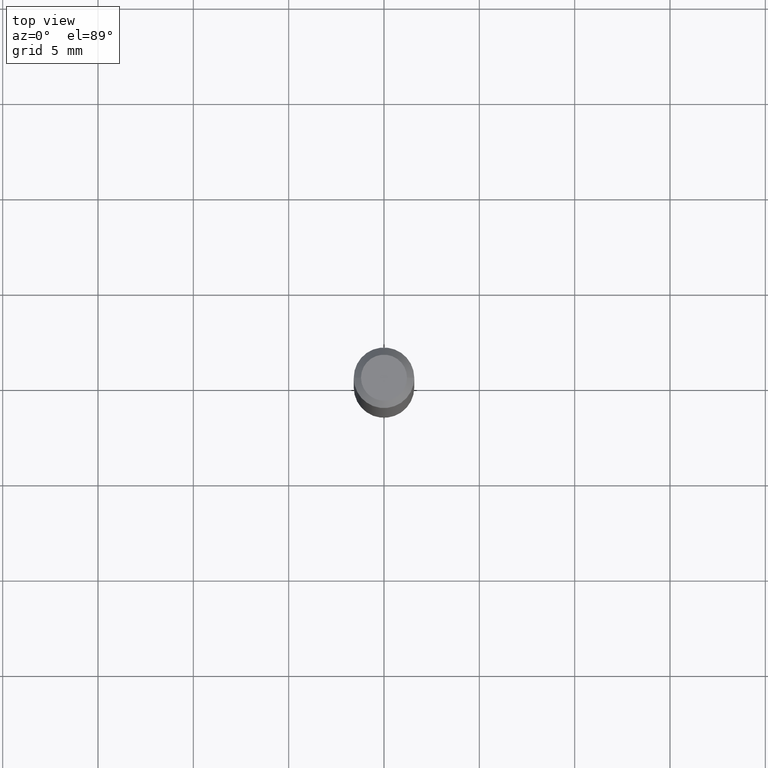
[diagram: clean part render]
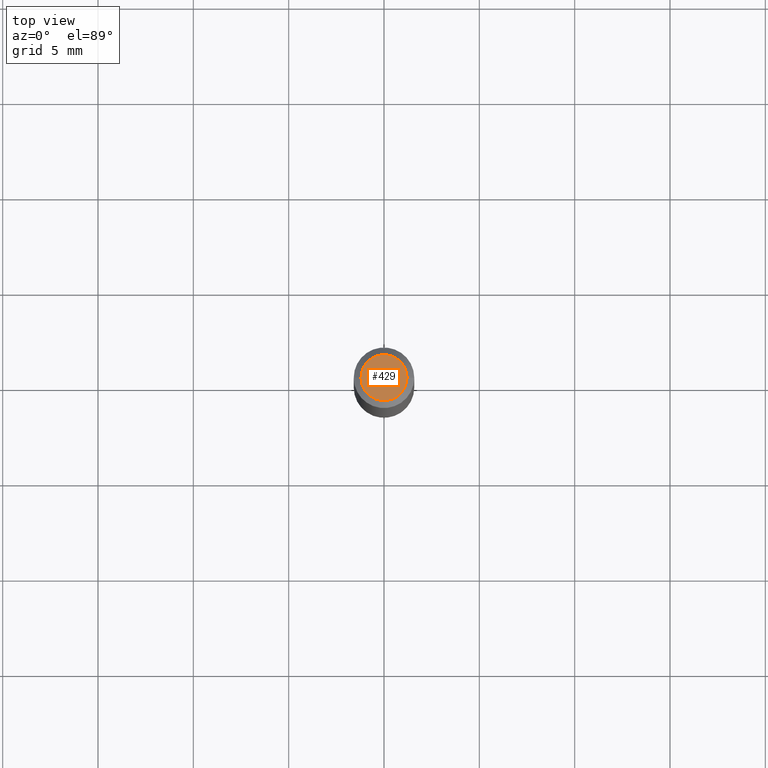
[diagram: same view with one face highlighted and labeled with its STEP entity id]
A machine part, top view. The second image highlights one B-rep face of the part: STEP entity #429.
In plain terms, the highlighted planar face has unit normal (0, -0, -1).
Its self-contained STEP definition (entity closure, byte-faithful):
#41 = CARTESIAN_POINT ( 'NONE',  ( -0.04750000000000000749, 3.578768372314221353E-16, 2.731847993664239060E-16 ) ) ;
#55 = DIRECTION ( 'NONE',  ( 2.438088387897960049E-29, -3.491481338843145188E-15, -1.000000000000000000 ) ) ;
#69 = CARTESIAN_POINT ( 'NONE',  ( -6.680649051745406845E-45, 9.538196290434862081E-31, 2.731847993664263218E-16 ) ) ;
#124 = ORIENTED_EDGE ( 'NONE', *, *, #178, .T. ) ;
#137 = VERTEX_POINT ( 'NONE', #41 ) ;
#162 = ORIENTED_EDGE ( 'NONE', *, *, #252, .T. ) ;
#178 = EDGE_CURVE ( 'NONE', #361, #137, #246, .T. ) ;
#218 = DIRECTION ( 'NONE',  ( -1.000000000000000000, 6.982962677686265922E-15, -4.876176775795935793E-29 ) ) ;
#224 = DIRECTION ( 'NONE',  ( 1.000000000000000000, -6.982962677686266711E-15, 4.852736867747365086E-29 ) ) ;
#232 = CIRCLE ( 'NONE', #518, 0.04750000000000000749 ) ;
#246 = CIRCLE ( 'NONE', #510, 0.04750000000000000749 ) ;
#252 = EDGE_CURVE ( 'NONE', #137, #361, #232, .T. ) ;
#253 = PLANE ( 'NONE',  #390 ) ;
#264 = DIRECTION ( 'NONE',  ( -2.445468806185136597E-29, 3.491481338843145583E-15, 1.000000000000000000 ) ) ;
#270 = CARTESIAN_POINT ( 'NONE',  ( -6.680649051745406845E-45, 9.538196290434862081E-31, 2.731847993664263218E-16 ) ) ;
#296 = CARTESIAN_POINT ( 'NONE',  ( 0.04750000000000000749, -4.035134999187568762E-16, 2.731847993664288856E-16 ) ) ;
#361 = VERTEX_POINT ( 'NONE', #296 ) ;
#370 = EDGE_LOOP ( 'NONE', ( #162, #124 ) ) ;
#377 = DIRECTION ( 'NONE',  ( -2.445468806185136597E-29, 3.491481338843145583E-15, 1.000000000000000000 ) ) ;
#389 = DIRECTION ( 'NONE',  ( 1.000000000000000000, -6.982962677686266711E-15, 4.852736867747365086E-29 ) ) ;
#390 = AXIS2_PLACEMENT_3D ( 'NONE', #418, #55, #218 ) ;
#414 = FACE_OUTER_BOUND ( 'NONE', #370, .T. ) ;
#418 = CARTESIAN_POINT ( 'NONE',  ( 3.316907271900976589E-16, 0.04750000000000000749, -2.925296391183627249E-17 ) ) ;
#429 = ADVANCED_FACE ( 'NONE', ( #414 ), #253, .F. ) ;
#510 = AXIS2_PLACEMENT_3D ( 'NONE', #270, #264, #389 ) ;
#518 = AXIS2_PLACEMENT_3D ( 'NONE', #69, #377, #224 ) ;